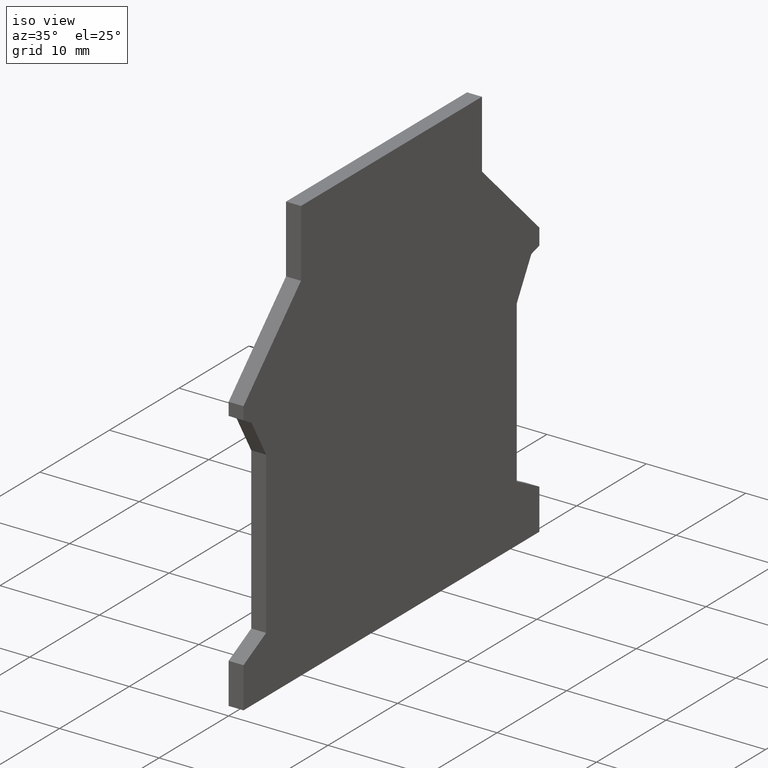
[diagram: clean part render]
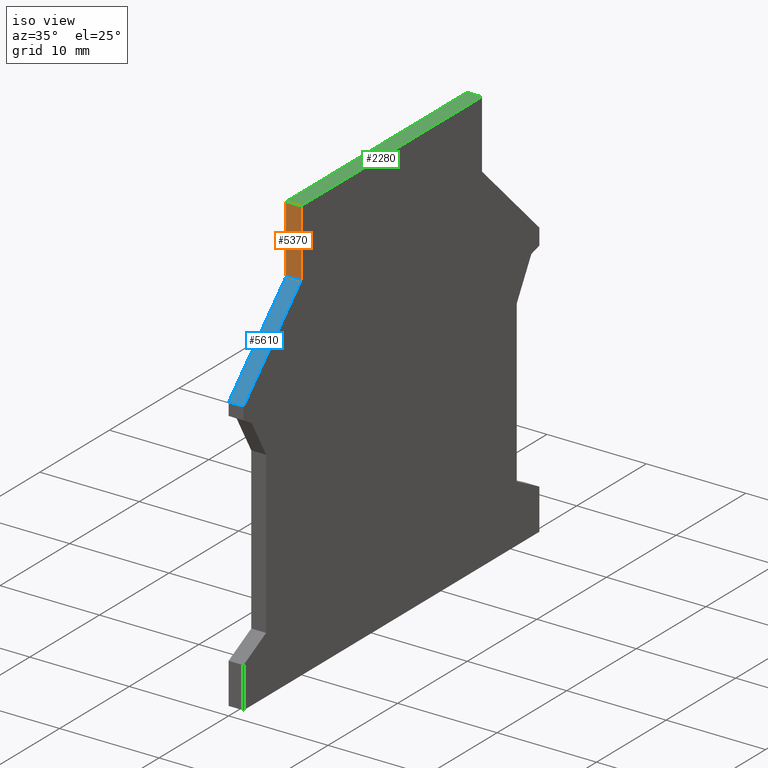
[diagram: same view with three faces highlighted in distinct colors, each labeled with its STEP entity id]
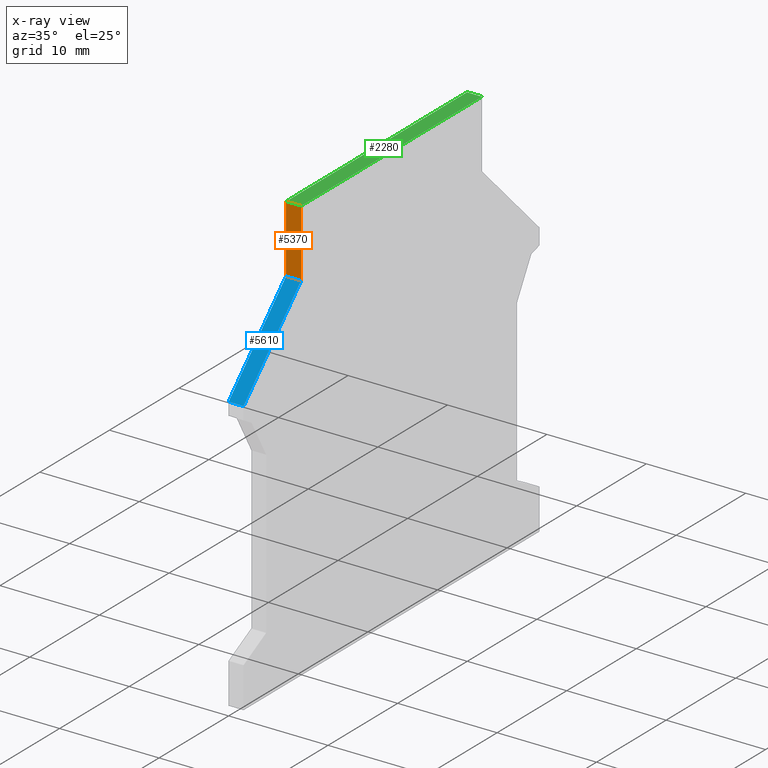
[diagram: x-ray of the same camera — body ghosted, the three highlighted faces saturated]
A machine part, iso view with three faces highlighted in distinct colors.
The next image is the same camera in x-ray (body ghosted, the three faces saturated) — at least one of them is partly hidden behind the body in this view.
Their STEP definitions:

[orange] entity #5370 — the highlighted planar face has unit normal (-0, -1, -0).
#1700=CARTESIAN_POINT('',(58.9666321988984,76.3035915835004,-1.5));
#1710=VERTEX_POINT('',#1700);
#1740=CARTESIAN_POINT('',(58.9666321988984,0.,-1.5));
#1750=DIRECTION('',(0.,1.,0.));
#1760=VECTOR('',#1750,1.);
#1770=LINE('',#1740,#1760);
#1780=CARTESIAN_POINT('',(58.9666321988984,83.1035915835004,-1.5));
#1790=VERTEX_POINT('',#1780);
#1800=EDGE_CURVE('',#1710,#1790,#1770,.T.);
#2120=CARTESIAN_POINT('',(58.9666321988984,83.1035915835004,0.));
#2130=DIRECTION('',(0.,0.,1.));
#2140=VECTOR('',#2130,1.);
#2150=LINE('',#2120,#2140);
#2160=CARTESIAN_POINT('',(58.9666321988984,83.1035915835004,
-5.36844862369917E-16));
#2170=VERTEX_POINT('',#2160);
#2180=EDGE_CURVE('',#1790,#2170,#2150,.T.);
#3970=CARTESIAN_POINT('',(58.9666321988984,0.,-5.36844862369917E-16));
#3980=DIRECTION('',(0.,1.,0.));
#3990=VECTOR('',#3980,1.);
#4000=LINE('',#3970,#3990);
#4010=CARTESIAN_POINT('',(58.9666321988984,76.3035915835004,
-4.71386665282273E-15));
#4020=VERTEX_POINT('',#4010);
#4030=EDGE_CURVE('',#4020,#2170,#4000,.T.);
#5210=CARTESIAN_POINT('',(58.9666321988984,76.3035915835004,0.));
#5220=DIRECTION('',(1.,0.,0.));
#5230=DIRECTION('',(0.,-1.,0.));
#5240=AXIS2_PLACEMENT_3D('',#5210,#5220,#5230);
#5250=PLANE('',#5240);
#5260=ORIENTED_EDGE('',*,*,#2180,.T.);
#5270=ORIENTED_EDGE('',*,*,#1800,.T.);
#5280=CARTESIAN_POINT('',(58.9666321988984,76.3035915835004,0.));
#5290=DIRECTION('',(0.,0.,-1.));
#5300=VECTOR('',#5290,1.);
#5310=LINE('',#5280,#5300);
#5320=EDGE_CURVE('',#4020,#1710,#5310,.T.);
#5330=ORIENTED_EDGE('',*,*,#5320,.T.);
#5340=ORIENTED_EDGE('',*,*,#4030,.F.);
#5350=EDGE_LOOP('',(#5340,#5330,#5270,#5260));
#5360=FACE_OUTER_BOUND('',#5350,.T.);
#5370=ADVANCED_FACE('',(#5360),#5250,.T.);

[blue] entity #5610 — the highlighted planar face has unit normal (-0, -0.7071, 0.7071).
#1620=CARTESIAN_POINT('',(67.2166321988984,68.0535915835004,-1.5));
#1630=VERTEX_POINT('',#1620);
#1660=CARTESIAN_POINT('',(135.270223782399,0.,-1.5));
#1670=DIRECTION('',(0.707106781186547,-0.707106781186548,0.));
#1680=VECTOR('',#1670,1.);
#1690=LINE('',#1660,#1680);
#1700=CARTESIAN_POINT('',(58.9666321988984,76.3035915835004,-1.5));
#1710=VERTEX_POINT('',#1700);
#1720=EDGE_CURVE('',#1710,#1630,#1690,.T.);
#4010=CARTESIAN_POINT('',(58.9666321988984,76.3035915835004,
-4.71386665282273E-15));
#4020=VERTEX_POINT('',#4010);
#4050=CARTESIAN_POINT('',(135.270223782399,0.,-4.71386665282273E-15));
#4060=DIRECTION('',(-0.707106781186547,0.707106781186548,0.));
#4070=VECTOR('',#4060,1.);
#4080=LINE('',#4050,#4070);
#4090=CARTESIAN_POINT('',(67.2166321988984,68.0535915835004,
-9.8846750628603E-16));
#4100=VERTEX_POINT('',#4090);
#4110=EDGE_CURVE('',#4100,#4020,#4080,.T.);
#5280=CARTESIAN_POINT('',(58.9666321988984,76.3035915835004,0.));
#5290=DIRECTION('',(0.,0.,-1.));
#5300=VECTOR('',#5290,1.);
#5310=LINE('',#5280,#5300);
#5320=EDGE_CURVE('',#4020,#1710,#5310,.T.);
#5450=CARTESIAN_POINT('',(67.0701855894917,68.2000381929071,0.));
#5460=DIRECTION('',(0.707106781186548,0.707106781186547,0.));
#5470=DIRECTION('',(0.707106781186547,-0.707106781186548,0.));
#5480=AXIS2_PLACEMENT_3D('',#5450,#5460,#5470);
#5490=PLANE('',#5480);
#5500=ORIENTED_EDGE('',*,*,#4110,.F.);
#5510=ORIENTED_EDGE('',*,*,#5320,.F.);
#5520=ORIENTED_EDGE('',*,*,#1720,.F.);
#5530=CARTESIAN_POINT('',(67.2166321988984,68.0535915835004,0.));
#5540=DIRECTION('',(0.,0.,1.));
#5550=VECTOR('',#5540,1.);
#5560=LINE('',#5530,#5550);
#5570=EDGE_CURVE('',#1630,#4100,#5560,.T.);
#5580=ORIENTED_EDGE('',*,*,#5570,.F.);
#5590=EDGE_LOOP('',(#5580,#5520,#5510,#5500));
#5600=FACE_OUTER_BOUND('',#5590,.T.);
#5610=ADVANCED_FACE('',(#5600),#5490,.T.);

[green] entity #2280 — the highlighted planar face has unit normal (-0, -0, 1).
#570=CARTESIAN_POINT('',(32.9666321988984,83.1035915835004,-1.5));
#580=VERTEX_POINT('',#570);
#1780=CARTESIAN_POINT('',(58.9666321988984,83.1035915835004,-1.5));
#1790=VERTEX_POINT('',#1780);
#1820=CARTESIAN_POINT('',(0.,83.1035915835004,-1.5));
#1830=DIRECTION('',(-1.,0.,0.));
#1840=VECTOR('',#1830,1.);
#1850=LINE('',#1820,#1840);
#1860=EDGE_CURVE('',#1790,#580,#1850,.T.);
#1980=CARTESIAN_POINT('',(43.3666321988984,83.1035915835004,0.));
#1990=DIRECTION('',(-0.,1.,0.));
#2000=DIRECTION('',(1.,0.,0.));
#2010=AXIS2_PLACEMENT_3D('',#1980,#1990,#2000);
#2020=PLANE('',#2010);
#2030=CARTESIAN_POINT('',(32.9666321988984,83.1035915835004,0.));
#2040=DIRECTION('',(0.,0.,1.));
#2050=VECTOR('',#2040,1.);
#2060=LINE('',#2030,#2050);
#2070=CARTESIAN_POINT('',(32.9666321988984,83.1035915835004,
8.86450742699044E-16));
#2080=VERTEX_POINT('',#2070);
#2090=EDGE_CURVE('',#580,#2080,#2060,.T.);
#2100=ORIENTED_EDGE('',*,*,#2090,.T.);
#2110=ORIENTED_EDGE('',*,*,#1860,.T.);
#2120=CARTESIAN_POINT('',(58.9666321988984,83.1035915835004,0.));
#2130=DIRECTION('',(0.,0.,1.));
#2140=VECTOR('',#2130,1.);
#2150=LINE('',#2120,#2140);
#2160=CARTESIAN_POINT('',(58.9666321988984,83.1035915835004,
-5.36844862369917E-16));
#2170=VERTEX_POINT('',#2160);
#2180=EDGE_CURVE('',#1790,#2170,#2150,.T.);
#2190=ORIENTED_EDGE('',*,*,#2180,.F.);
#2200=CARTESIAN_POINT('',(0.,83.1035915835004,2.69111469356893E-15));
#2210=DIRECTION('',(-1.,0.,5.47421386564985E-17));
#2220=VECTOR('',#2210,1.);
#2230=LINE('',#2200,#2220);
#2240=EDGE_CURVE('',#2170,#2080,#2230,.T.);
#2250=ORIENTED_EDGE('',*,*,#2240,.F.);
#2260=EDGE_LOOP('',(#2250,#2190,#2110,#2100));
#2270=FACE_OUTER_BOUND('',#2260,.T.);
#2280=ADVANCED_FACE('',(#2270),#2020,.T.);